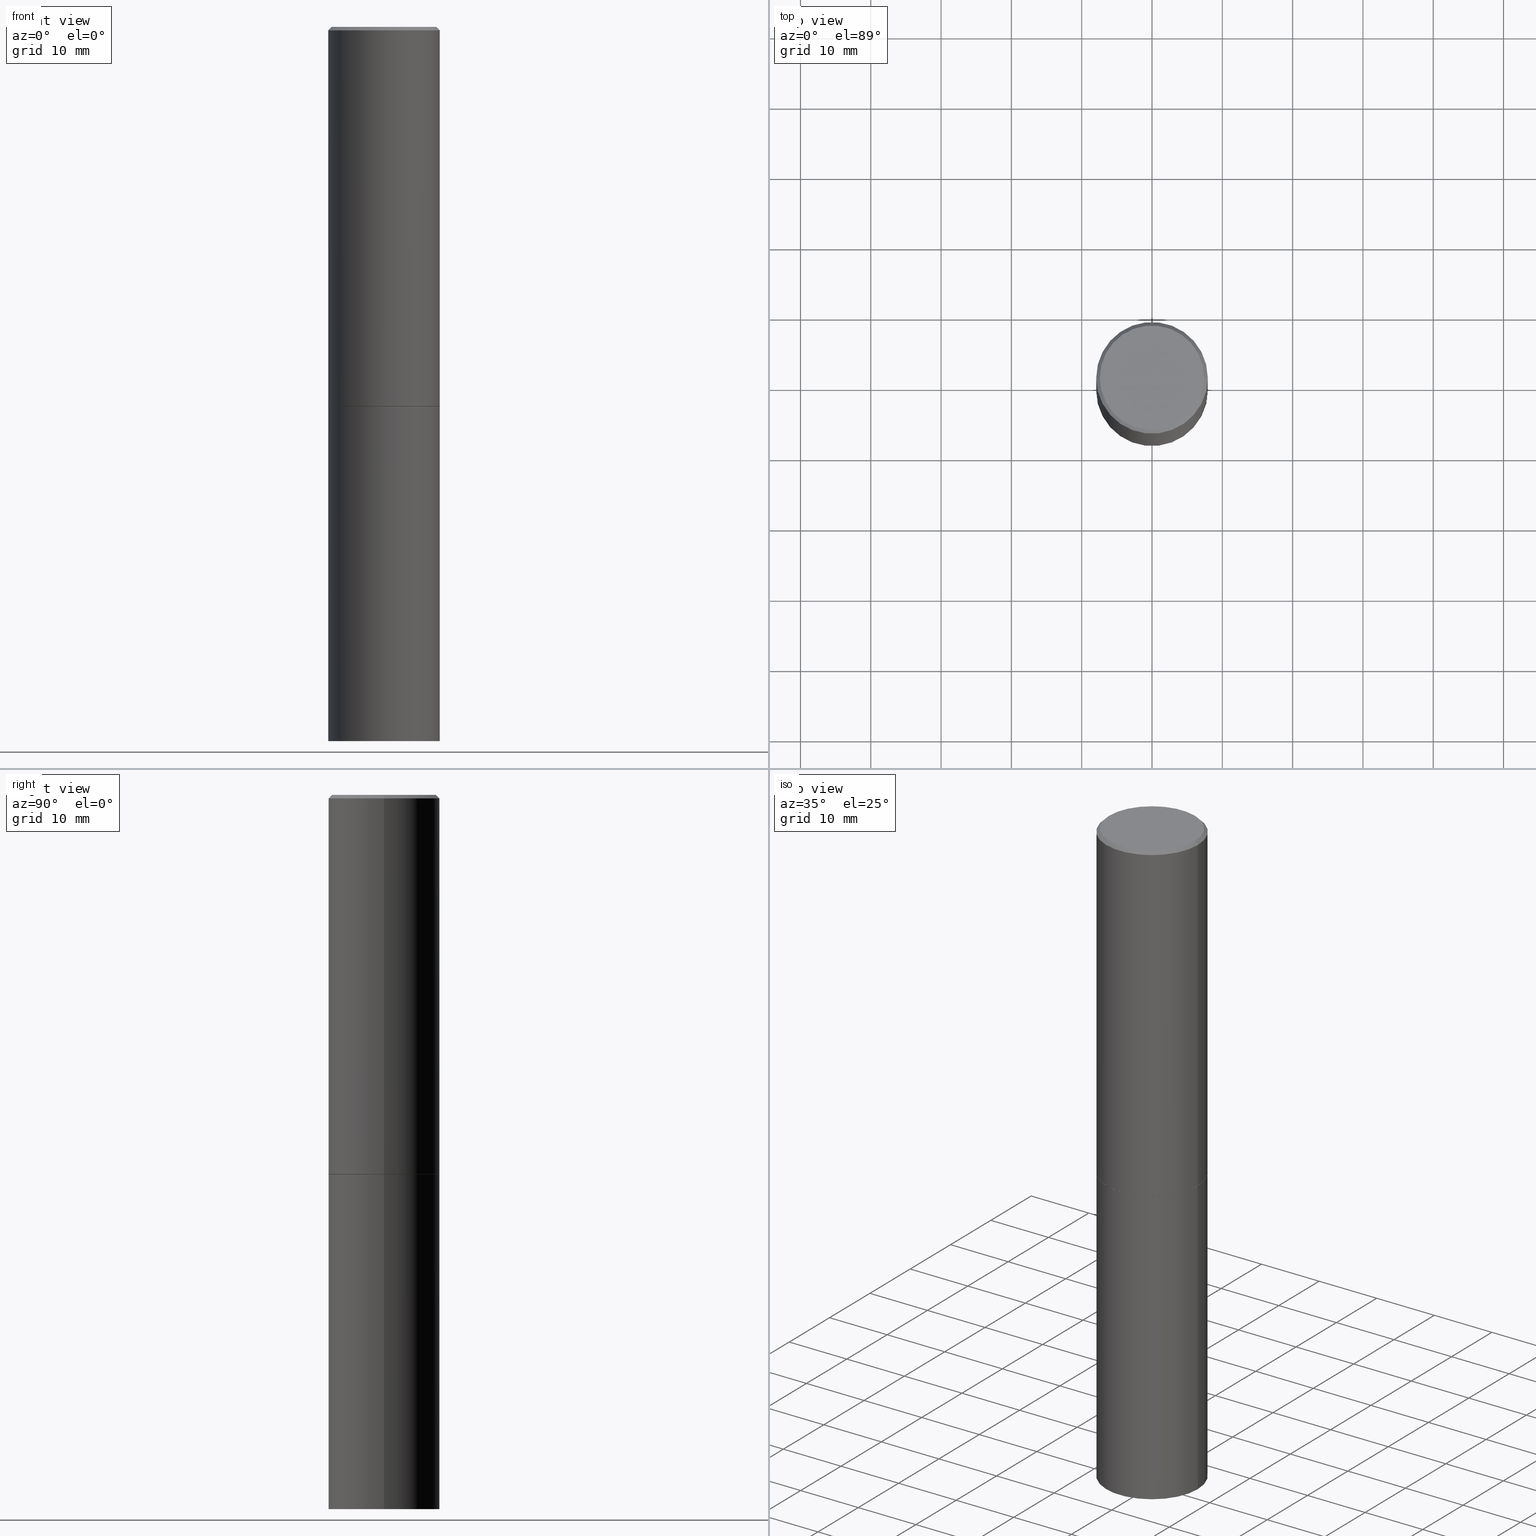
[diagram: canonical four-view strip — front | top / right | iso, engineering-drawing reading convention]
A machine part, canonical four-view strip (front | top / right | iso — engineering-drawing reading convention). The complete STEP part file that produces these views, byte-faithful:
ISO-10303-21;
HEADER;
FILE_DESCRIPTION (( 'STEP AP203' ),
    '1' );
FILE_NAME ('37569.STEP',
    '2024-02-27T22:23:01',
    ( '' ),
    ( '' ),
    'SwSTEP 2.0',
    'SolidWorks 2023',
    '' );
FILE_SCHEMA (( 'CONFIG_CONTROL_DESIGN' ));
ENDSEC;

DATA;
#1 = FACE_OUTER_BOUND ( 'NONE', #267, .T. ) ;
#2 = CC_DESIGN_PERSON_AND_ORGANIZATION_ASSIGNMENT ( #102, #314, ( #150 ) ) ;
#3 = VERTEX_POINT ( 'NONE', #190 ) ;
#4 =( GEOMETRIC_REPRESENTATION_CONTEXT ( 3 ) GLOBAL_UNCERTAINTY_ASSIGNED_CONTEXT ( ( #292 ) ) GLOBAL_UNIT_ASSIGNED_CONTEXT ( ( #294, #96, #315 ) ) REPRESENTATION_CONTEXT ( 'NONE', 'WORKASPACE' ) );
#5 = AXIS2_PLACEMENT_3D ( 'NONE', #212, #242, #270 ) ;
#6 = CARTESIAN_POINT ( 'NONE',  ( 9.781875224740546387E-29, -1.396592535537258233E-14, -4.000000000000000000 ) ) ;
#7 = DIRECTION ( 'NONE',  ( -2.445468806185136597E-29, 3.491481338843145583E-15, 1.000000000000000000 ) ) ;
#8 = EDGE_CURVE ( 'NONE', #320, #131, #229, .T. ) ;
#9 = DIRECTION ( 'NONE',  ( -2.445468806185136597E-29, 3.491481338843145583E-15, 1.000000000000000000 ) ) ;
#10 = AXIS2_PLACEMENT_3D ( 'NONE', #202, #313, #173 ) ;
#11 = APPROVAL_PERSON_ORGANIZATION ( #243, #107, #40 ) ;
#12 = PERSON_AND_ORGANIZATION ( #92, #253 ) ;
#13 = LENGTH_MEASURE_WITH_UNIT ( LENGTH_MEASURE( 0.02539999999999999897 ), #41 );
#14 = EDGE_CURVE ( 'NONE', #227, #77, #171, .T. ) ;
#15 = PLANE ( 'NONE',  #213 ) ;
#16 = CARTESIAN_POINT ( 'NONE',  ( 9.781875224740546387E-29, -1.396592535537258233E-14, -4.000000000000000000 ) ) ;
#17 = VECTOR ( 'NONE', #87, 39.37007874015748143 ) ;
#18 = APPROVAL_DATE_TIME ( #268, #65 ) ;
#19 = VERTEX_POINT ( 'NONE', #144 ) ;
#20 = CARTESIAN_POINT ( 'NONE',  ( 5.196621213143414147E-29, -7.419397845041682046E-15, -2.124999999999999556 ) ) ;
#21 = ORIENTED_EDGE ( 'NONE', *, *, #231, .T. ) ;
#22 = CARTESIAN_POINT ( 'NONE',  ( 2.182175836777010017E-15, 0.3124999999999925615, -2.125000000000000888 ) ) ;
#23 = EDGE_CURVE ( 'NONE', #3, #99, #160, .T. ) ;
#24 = CONICAL_SURFACE ( 'NONE', #36, 0.3124999999999998335, 0.7853981633974469467 ) ;
#25 = ORIENTED_EDGE ( 'NONE', *, *, #8, .F. ) ;
#26 = AXIS2_PLACEMENT_3D ( 'NONE', #20, #74, #134 ) ;
#27 = PERSON_AND_ORGANIZATION_ROLE ( 'design_owner' ) ;
#28 = ORIENTED_EDGE ( 'NONE', *, *, #145, .T. ) ;
#29 = DIRECTION ( 'NONE',  ( -2.445468806185136877E-29, 3.491481338843145188E-15, 1.000000000000000000 ) ) ;
#30 = CARTESIAN_POINT ( 'NONE',  ( 2.042516583223231356E-15, 0.2924999999999997602, -1.019124035366569212E-15 ) ) ;
#31 = LOCAL_TIME ( 17, 23, 1.000000000000000000, #360 ) ;
#32 = EDGE_LOOP ( 'NONE', ( #108, #46, #350, #178 ) ) ;
#33 = ADVANCED_FACE ( 'NONE', ( #122 ), #91, .T. ) ;
#34 = CARTESIAN_POINT ( 'NONE',  ( 0.3124999999999998335, -2.213735251080465334E-15, -0.02000000000000007674 ) ) ;
#35 = DIRECTION ( 'NONE',  ( -0.7071067811865465735, 2.468850131082246805E-15, -0.7071067811865484609 ) ) ;
#36 = AXIS2_PLACEMENT_3D ( 'NONE', #265, #101, #201 ) ;
#37 = CARTESIAN_POINT ( 'NONE',  ( 5.196621213143414147E-29, -7.419397845041682046E-15, -2.124999999999999556 ) ) ;
#38 = EDGE_CURVE ( 'NONE', #52, #106, #279, .T. ) ;
#39 = MECHANICAL_CONTEXT ( 'NONE', #257, 'mechanical' ) ;
#40 = APPROVAL_ROLE ( '' ) ;
#41 =( LENGTH_UNIT ( ) NAMED_UNIT ( * ) SI_UNIT ( $, .METRE. ) );
#42 = VERTEX_POINT ( 'NONE', #53 ) ;
#43 = CYLINDRICAL_SURFACE ( 'NONE', #334, 0.3124999999999998890 ) ;
#44 = AXIS2_PLACEMENT_3D ( 'NONE', #37, #93, #262 ) ;
#45 = SECURITY_CLASSIFICATION ( '', '', #205 ) ;
#46 = ORIENTED_EDGE ( 'NONE', *, *, #343, .T. ) ;
#47 = CARTESIAN_POINT ( 'NONE',  ( 5.196621213143414147E-29, -7.419397845041682046E-15, -2.124999999999999556 ) ) ;
#48 = EDGE_LOOP ( 'NONE', ( #298, #329, #210, #193 ) ) ;
#49 = FACE_OUTER_BOUND ( 'NONE', #206, .T. ) ;
#50 = ORIENTED_EDGE ( 'NONE', *, *, #219, .F. ) ;
#51 = AXIS2_PLACEMENT_3D ( 'NONE', #222, #277, #308 ) ;
#52 = VERTEX_POINT ( 'NONE', #195 ) ;
#53 = CARTESIAN_POINT ( 'NONE',  ( -0.3125000000000000000, -8.472215550956819896E-15, -4.000000000000000000 ) ) ;
#54 = PERSON_AND_ORGANIZATION ( #92, #253 ) ;
#55 = CARTESIAN_POINT ( 'NONE',  ( 5.194175744337229665E-29, -7.415906363702840616E-15, -2.123999999999999666 ) ) ;
#56 = DIRECTION ( 'NONE',  ( 1.000000000000000000, -6.982962677686266711E-15, 4.876067333457693400E-29 ) ) ;
#57 = AXIS2_PLACEMENT_3D ( 'NONE', #338, #304, #333 ) ;
#58 = ADVANCED_FACE ( 'NONE', ( #281 ), #114, .T. ) ;
#59 = CARTESIAN_POINT ( 'NONE',  ( 0.3125000000000000000, -1.614810119214954068E-14, -4.000000000000000000 ) ) ;
#60 = FACE_OUTER_BOUND ( 'NONE', #75, .T. ) ;
#61 = LINE ( 'NONE', #170, #98 ) ;
#62 = CARTESIAN_POINT ( 'NONE',  ( -0.2924999999999997602, 2.077431396611662611E-15, 4.268512490086005323E-18 ) ) ;
#63 = APPROVAL_PERSON_ORGANIZATION ( #54, #263, #255 ) ;
#64 = DIRECTION ( 'NONE',  ( 1.000000000000000000, -6.982962677686269077E-15, 0.000000000000000000 ) ) ;
#65 = APPROVAL ( #163, 'UNSPECIFIED' ) ;
#66 = PERSON_AND_ORGANIZATION ( #92, #253 ) ;
#67 = DIRECTION ( 'NONE',  ( -2.445468806185136597E-29, 3.491481338843145583E-15, 1.000000000000000000 ) ) ;
#68 = CARTESIAN_POINT ( 'NONE',  ( -1.043851414335219820E-46, 1.490343170380447200E-32, 4.268512490100411279E-18 ) ) ;
#69 = ORIENTED_EDGE ( 'NONE', *, *, #85, .T. ) ;
#70 = DIRECTION ( 'NONE',  ( 1.000000000000000000, 0.000000000000000000, 0.000000000000000000 ) ) ;
#71 = CARTESIAN_POINT ( 'NONE',  ( 4.890937612370292426E-31, -6.982962677686317493E-17, -0.02000000000000007674 ) ) ;
#72 = CONICAL_SURFACE ( 'NONE', #183, 0.3114999999999999991, 0.7853981633974141952 ) ;
#73 = ORIENTED_EDGE ( 'NONE', *, *, #184, .F. ) ;
#74 = DIRECTION ( 'NONE',  ( -2.445468806185136597E-29, 3.491481338843145583E-15, 1.000000000000000000 ) ) ;
#75 = EDGE_LOOP ( 'NONE', ( #357, #21, #217, #215 ) ) ;
#76 = COORDINATED_UNIVERSAL_TIME_OFFSET ( 5, 0, .BEHIND. ) ;
#77 = VERTEX_POINT ( 'NONE', #359 ) ;
#78 = PERSON_AND_ORGANIZATION ( #92, #253 ) ;
#79 = EDGE_CURVE ( 'NONE', #227, #106, #61, .T. ) ;
#80 = CIRCLE ( 'NONE', #228, 0.2924999999999997602 ) ;
#81 = CARTESIAN_POINT ( 'NONE',  ( 4.890937612370292426E-31, -6.982962677686317493E-17, -0.02000000000000007674 ) ) ;
#82 = APPROVAL_STATUS ( 'not_yet_approved' ) ;
#83 = DIRECTION ( 'NONE',  ( -2.445468806185136597E-29, 3.491481338843145583E-15, 1.000000000000000000 ) ) ;
#84 = CALENDAR_DATE ( 2024, 27, 2 ) ;
#85 = EDGE_CURVE ( 'NONE', #99, #3, #252, .T. ) ;
#86 = EDGE_LOOP ( 'NONE', ( #159, #269, #272, #244 ) ) ;
#87 = DIRECTION ( 'NONE',  ( -2.445468806185136877E-29, 3.491481338843145188E-15, 1.000000000000000000 ) ) ;
#88 = CIRCLE ( 'NONE', #105, 0.3125000000000000000 ) ;
#89 = LOCAL_TIME ( 17, 23, 1.000000000000000000, #318 ) ;
#90 = DIRECTION ( 'NONE',  ( 1.000000000000000000, -6.982962677686265922E-15, 4.876176775795935793E-29 ) ) ;
#91 = CYLINDRICAL_SURFACE ( 'NONE', #259, 0.3125000000000000000 ) ;
#92 = PERSON ( 'UNSPECIFIED', 'UNSPECIFIED', 'UNSPECIFIED', ('UNSPECIFIED'), ('UNSPECIFIED'), ('UNSPECIFIED') ) ;
#93 = DIRECTION ( 'NONE',  ( -2.445468806185136597E-29, 3.491481338843145583E-15, 1.000000000000000000 ) ) ;
#94 = AXIS2_PLACEMENT_3D ( 'NONE', #71, #142, #347 ) ;
#95 = CC_DESIGN_PERSON_AND_ORGANIZATION_ASSIGNMENT ( #141, #27, ( #218 ) ) ;
#96 =( NAMED_UNIT ( * ) PLANE_ANGLE_UNIT ( ) SI_UNIT ( $, .RADIAN. ) );
#97 = CARTESIAN_POINT ( 'NONE',  ( 0.3124999999999998335, -2.213735251080465334E-15, -0.02000000000000007674 ) ) ;
#98 = VECTOR ( 'NONE', #35, 39.37007874015748143 ) ;
#99 = VERTEX_POINT ( 'NONE', #249 ) ;
#100 = MANIFOLD_SOLID_BREP ( 'Body-Move/Copy2[2]', #211 ) ;
#101 = DIRECTION ( 'NONE',  ( 2.445468806185136597E-29, -3.491481338843145583E-15, -1.000000000000000000 ) ) ;
#102 = PERSON_AND_ORGANIZATION ( #92, #253 ) ;
#103 = ORIENTED_EDGE ( 'NONE', *, *, #14, .T. ) ;
#104 = FACE_OUTER_BOUND ( 'NONE', #186, .T. ) ;
#105 = AXIS2_PLACEMENT_3D ( 'NONE', #55, #168, #278 ) ;
#106 = VERTEX_POINT ( 'NONE', #251 ) ;
#107 = APPROVAL ( #286, 'UNSPECIFIED' ) ;
#108 = ORIENTED_EDGE ( 'NONE', *, *, #226, .F. ) ;
#109 = VERTEX_POINT ( 'NONE', #59 ) ;
#110 = CALENDAR_DATE ( 2024, 27, 2 ) ;
#111 = CARTESIAN_POINT ( 'NONE',  ( -0.3125000000000000000, 2.220446049250313081E-15, -1.537167215704658232E-29 ) ) ;
#112 = CONICAL_SURFACE ( 'NONE', #94, 0.3124999999999998335, 0.7853981633974469467 ) ;
#113 = CONICAL_SURFACE ( 'NONE', #5, 0.3114999999999999991, 0.7853981633974141952 ) ;
#114 = PLANE ( 'NONE',  #51 ) ;
#115 = PRODUCT_DEFINITION_SHAPE ( 'NONE', 'NONE',  #151 ) ;
#116 = EDGE_CURVE ( 'NONE', #131, #106, #305, .T. ) ;
#117 = MANIFOLD_SOLID_BREP ( 'Body-Move/Copy2[1]', #223 ) ;
#118 = CARTESIAN_POINT ( 'NONE',  ( -0.3124999999999998890, 2.220446049250312292E-15, -1.537167215704657391E-29 ) ) ;
#119 = PLANE ( 'NONE',  #282 ) ;
#120 = CARTESIAN_POINT ( 'NONE',  ( -1.043851414335219820E-46, 1.490343170380447200E-32, 4.268512490100411279E-18 ) ) ;
#121 = CARTESIAN_POINT ( 'NONE',  ( 5.196621213143414147E-29, -7.419397845041682046E-15, -2.124999999999999556 ) ) ;
#122 = FACE_OUTER_BOUND ( 'NONE', #86, .T. ) ;
#123 = AXIS2_PLACEMENT_3D ( 'NONE', #321, #127, #70 ) ;
#124 = DIRECTION ( 'NONE',  ( -0.7071067811865232589, 7.493145998870265808E-15, 0.7071067811865715536 ) ) ;
#125 = VECTOR ( 'NONE', #335, 39.37007874015748143 ) ;
#126 = EDGE_CURVE ( 'NONE', #52, #320, #88, .T. ) ;
#127 = DIRECTION ( 'NONE',  ( 0.000000000000000000, 0.000000000000000000, 1.000000000000000000 ) ) ;
#128 = EDGE_CURVE ( 'NONE', #106, #131, #362, .T. ) ;
#129 = LOCAL_TIME ( 17, 23, 1.000000000000000000, #76 ) ;
#130 = DIRECTION ( 'NONE',  ( 1.000000000000000000, -6.982962677686269077E-15, 0.000000000000000000 ) ) ;
#131 = VERTEX_POINT ( 'NONE', #34 ) ;
#132 = PERSON_AND_ORGANIZATION_ROLE ( 'classification_officer' ) ;
#133 = ORIENTED_EDGE ( 'NONE', *, *, #116, .F. ) ;
#134 = DIRECTION ( 'NONE',  ( 1.000000000000000000, -6.982962677686269077E-15, 0.000000000000000000 ) ) ;
#135 = ORIENTED_EDGE ( 'NONE', *, *, #23, .T. ) ;
#136 = AXIS2_PLACEMENT_3D ( 'NONE', #81, #140, #224 ) ;
#137 = CC_DESIGN_DATE_AND_TIME_ASSIGNMENT ( #332, #187, ( #151 ) ) ;
#138 = ORIENTED_EDGE ( 'NONE', *, *, #328, .F. ) ;
#139 = FACE_OUTER_BOUND ( 'NONE', #241, .T. ) ;
#140 = DIRECTION ( 'NONE',  ( -2.445468806185136597E-29, 3.491481338843145583E-15, 1.000000000000000000 ) ) ;
#141 = PERSON_AND_ORGANIZATION ( #92, #253 ) ;
#142 = DIRECTION ( 'NONE',  ( 2.445468806185136597E-29, -3.491481338843145583E-15, -1.000000000000000000 ) ) ;
#143 = LINE ( 'NONE', #276, #325 ) ;
#144 = CARTESIAN_POINT ( 'NONE',  ( 0.3114999999999999991, -9.594590719140955956E-15, -2.124999999999999556 ) ) ;
#145 = EDGE_CURVE ( 'NONE', #19, #320, #361, .T. ) ;
#146 = AXIS2_PLACEMENT_3D ( 'NONE', #307, #167, #336 ) ;
#147 = DIRECTION ( 'NONE',  ( 1.000000000000000000, -6.982962677686266711E-15, 4.876176775795935232E-29 ) ) ;
#148 = EDGE_CURVE ( 'NONE', #109, #3, #143, .T. ) ;
#149 = CYLINDRICAL_SURFACE ( 'NONE', #10, 0.3125000000000000000 ) ;
#150 = PRODUCT_DEFINITION_FORMATION_WITH_SPECIFIED_SOURCE ( 'ANY', '', #218, .NOT_KNOWN. ) ;
#151 = PRODUCT_DEFINITION ( 'UNKNOWN', '', #150, #337 ) ;
#152 = DIRECTION ( 'NONE',  ( -1.000000000000000000, 6.982962677686265922E-15, -4.876176775795935793E-29 ) ) ;
#153 = EDGE_LOOP ( 'NONE', ( #135, #69 ) ) ;
#154 = VECTOR ( 'NONE', #124, 39.37007874015748854 ) ;
#155 = FACE_OUTER_BOUND ( 'NONE', #32, .T. ) ;
#156 = ORIENTED_EDGE ( 'NONE', *, *, #164, .F. ) ;
#157 = DIRECTION ( 'NONE',  ( -1.000000000000000000, 6.982962677686265922E-15, -4.876176775795935793E-29 ) ) ;
#158 = ADVANCED_FACE ( 'NONE', ( #139 ), #192, .F. ) ;
#159 = ORIENTED_EDGE ( 'NONE', *, *, #199, .T. ) ;
#160 = CIRCLE ( 'NONE', #194, 0.3125000000000000000 ) ;
#161 = AXIS2_PLACEMENT_3D ( 'NONE', #120, #254, #56 ) ;
#162 = ORIENTED_EDGE ( 'NONE', *, *, #164, .T. ) ;
#163 = APPROVAL_STATUS ( 'not_yet_approved' ) ;
#164 = EDGE_CURVE ( 'NONE', #293, #52, #260, .T. ) ;
#165 = DIRECTION ( 'NONE',  ( 0.7071067811865232589, -2.468850131082003836E-15, 0.7071067811865715536 ) ) ;
#166 = CC_DESIGN_APPROVAL ( #263, ( #151 ) ) ;
#167 = DIRECTION ( 'NONE',  ( -2.445468806185136597E-29, 3.491481338843145583E-15, 1.000000000000000000 ) ) ;
#168 = DIRECTION ( 'NONE',  ( -2.445468806185136597E-29, 3.491481338843145583E-15, 1.000000000000000000 ) ) ;
#169 = CC_DESIGN_DATE_AND_TIME_ASSIGNMENT ( #175, #289, ( #45 ) ) ;
#170 = CARTESIAN_POINT ( 'NONE',  ( -0.3124999999999998335, 2.112346210000093866E-15, -0.02000000000000007674 ) ) ;
#171 = CIRCLE ( 'NONE', #161, 0.2924999999999997602 ) ;
#172 = ADVANCED_FACE ( 'NONE', ( #155 ), #24, .T. ) ;
#173 = DIRECTION ( 'NONE',  ( 1.000000000000000000, -6.982962677686266711E-15, 4.876176775795936353E-29 ) ) ;
#174 = AXIS2_PLACEMENT_3D ( 'NONE', #204, #238, #319 ) ;
#175 = DATE_AND_TIME ( #180, #89 ) ;
#176 = DIRECTION ( 'NONE',  ( 0.7071067811865465735, -7.319954787623252890E-15, -0.7071067811865484609 ) ) ;
#177 = DIRECTION ( 'NONE',  ( -2.445468806185136597E-29, 3.491481338843145583E-15, 1.000000000000000000 ) ) ;
#178 = ORIENTED_EDGE ( 'NONE', *, *, #79, .F. ) ;
#179 = APPLICATION_PROTOCOL_DEFINITION ( 'international standard', 'config_control_design', 1994, #257 ) ;
#180 = CALENDAR_DATE ( 2024, 27, 2 ) ;
#181 = ORIENTED_EDGE ( 'NONE', *, *, #14, .F. ) ;
#182 = DIRECTION ( 'NONE',  ( 1.000000000000000000, -6.982962677686269077E-15, 0.000000000000000000 ) ) ;
#183 = AXIS2_PLACEMENT_3D ( 'NONE', #47, #67, #182 ) ;
#184 = EDGE_CURVE ( 'NONE', #19, #293, #232, .T. ) ;
#185 = ORIENTED_EDGE ( 'NONE', *, *, #231, .F. ) ;
#186 = EDGE_LOOP ( 'NONE', ( #248, #355, #133, #25 ) ) ;
#187 = DATE_TIME_ROLE ( 'creation_date' ) ;
#188 = ORIENTED_EDGE ( 'NONE', *, *, #145, .F. ) ;
#189 = CIRCLE ( 'NONE', #236, 0.3125000000000000000 ) ;
#190 = CARTESIAN_POINT ( 'NONE',  ( 0.3125000000000000000, -9.601573681818640393E-15, -2.124999999999999556 ) ) ;
#191 = SHAPE_DEFINITION_REPRESENTATION ( #115, #324 ) ;
#192 = PLANE ( 'NONE',  #349 ) ;
#193 = ORIENTED_EDGE ( 'NONE', *, *, #128, .F. ) ;
#194 = AXIS2_PLACEMENT_3D ( 'NONE', #364, #83, #258 ) ;
#195 = CARTESIAN_POINT ( 'NONE',  ( -0.3125000000000000000, -1.522421945989535918E-15, -2.123999999999999666 ) ) ;
#196 = CC_DESIGN_PERSON_AND_ORGANIZATION_ASSIGNMENT ( #250, #358, ( #151 ) ) ;
#197 = DIRECTION ( 'NONE',  ( -2.445468806185136877E-29, 3.491481338843145188E-15, 1.000000000000000000 ) ) ;
#198 = CYLINDRICAL_SURFACE ( 'NONE', #266, 0.3124999999999998890 ) ;
#199 = EDGE_CURVE ( 'NONE', #109, #42, #200, .T. ) ;
#200 = CIRCLE ( 'NONE', #340, 0.3125000000000000000 ) ;
#201 = DIRECTION ( 'NONE',  ( -1.000000000000000000, 6.982962677686265133E-15, 0.000000000000000000 ) ) ;
#202 = CARTESIAN_POINT ( 'NONE',  ( 0.000000000000000000, 0.000000000000000000, 0.000000000000000000 ) ) ;
#203 = CARTESIAN_POINT ( 'NONE',  ( 0.3125000000000000000, -9.598082200479797386E-15, -2.123999999999999666 ) ) ;
#204 = CARTESIAN_POINT ( 'NONE',  ( 5.194175744337229665E-29, -7.415906363702840616E-15, -2.123999999999999666 ) ) ;
#205 = SECURITY_CLASSIFICATION_LEVEL ( 'unclassified' ) ;
#206 = EDGE_LOOP ( 'NONE', ( #246, #162, #50, #188 ) ) ;
#207 = DIRECTION ( 'NONE',  ( -2.445468806185136597E-29, 3.491481338843145583E-15, 1.000000000000000000 ) ) ;
#208 = ORIENTED_EDGE ( 'NONE', *, *, #126, .F. ) ;
#209 = ADVANCED_FACE ( 'NONE', ( #233 ), #198, .T. ) ;
#210 = ORIENTED_EDGE ( 'NONE', *, *, #8, .T. ) ;
#211 = CLOSED_SHELL ( 'NONE', ( #312, #345, #172, #256, #209, #309, #261, #158 ) ) ;
#212 = CARTESIAN_POINT ( 'NONE',  ( 5.196621213143414147E-29, -7.419397845041682046E-15, -2.124999999999999556 ) ) ;
#213 = AXIS2_PLACEMENT_3D ( 'NONE', #22, #237, #157 ) ;
#214 = CC_DESIGN_SECURITY_CLASSIFICATION ( #45, ( #150 ) ) ;
#215 = ORIENTED_EDGE ( 'NONE', *, *, #85, .F. ) ;
#216 = APPLICATION_PROTOCOL_DEFINITION ( 'international standard', 'config_control_design', 1994, #239 ) ;
#217 = ORIENTED_EDGE ( 'NONE', *, *, #148, .T. ) ;
#218 = PRODUCT ( '37569', '37569', '', ( #39 ) ) ;
#219 = EDGE_CURVE ( 'NONE', #320, #52, #285, .T. ) ;
#220 = APPROVAL_DATE_TIME ( #300, #263 ) ;
#221 = APPROVAL_DATE_TIME ( #354, #107 ) ;
#222 = CARTESIAN_POINT ( 'NONE',  ( 2.182175836777055771E-15, 0.3124999999999860667, -4.000000000000000888 ) ) ;
#223 = CLOSED_SHELL ( 'NONE', ( #33, #58, #302, #280 ) ) ;
#224 = DIRECTION ( 'NONE',  ( 1.000000000000000000, -6.982962677686265133E-15, 0.000000000000000000 ) ) ;
#225 = DIRECTION ( 'NONE',  ( 2.438088387897960049E-29, -3.491481338843145188E-15, -1.000000000000000000 ) ) ;
#226 = EDGE_CURVE ( 'NONE', #77, #227, #80, .T. ) ;
#227 = VERTEX_POINT ( 'NONE', #62 ) ;
#228 = AXIS2_PLACEMENT_3D ( 'NONE', #68, #177, #310 ) ;
#229 = LINE ( 'NONE', #366, #316 ) ;
#230 = CARTESIAN_POINT ( 'NONE',  ( -0.3114999999999999991, -5.206057223148969973E-15, -2.124999999999999556 ) ) ;
#231 = EDGE_CURVE ( 'NONE', #42, #109, #189, .T. ) ;
#232 = CIRCLE ( 'NONE', #44, 0.3114999999999999991 ) ;
#233 = FACE_OUTER_BOUND ( 'NONE', #48, .T. ) ;
#234 = CC_DESIGN_APPROVAL ( #107, ( #45 ) ) ;
#235 = CC_DESIGN_PERSON_AND_ORGANIZATION_ASSIGNMENT ( #12, #132, ( #45 ) ) ;
#236 = AXIS2_PLACEMENT_3D ( 'NONE', #16, #7, #130 ) ;
#237 = DIRECTION ( 'NONE',  ( 2.438088387897960049E-29, -3.491481338843145188E-15, -1.000000000000000000 ) ) ;
#238 = DIRECTION ( 'NONE',  ( -2.445468806185136597E-29, 3.491481338843145583E-15, 1.000000000000000000 ) ) ;
#239 = APPLICATION_CONTEXT ( 'configuration controlled 3d designs of mechanical parts and assemblies' ) ;
#240 = COORDINATED_UNIVERSAL_TIME_OFFSET ( 5, 0, .BEHIND. ) ;
#241 = EDGE_LOOP ( 'NONE', ( #103, #275 ) ) ;
#242 = DIRECTION ( 'NONE',  ( -2.445468806185136597E-29, 3.491481338843145583E-15, 1.000000000000000000 ) ) ;
#243 = PERSON_AND_ORGANIZATION ( #92, #253 ) ;
#244 = ORIENTED_EDGE ( 'NONE', *, *, #148, .F. ) ;
#245 = LINE ( 'NONE', #97, #363 ) ;
#246 = ORIENTED_EDGE ( 'NONE', *, *, #184, .T. ) ;
#247 = LOCAL_TIME ( 17, 23, 1.000000000000000000, #240 ) ;
#248 = ORIENTED_EDGE ( 'NONE', *, *, #219, .T. ) ;
#249 = CARTESIAN_POINT ( 'NONE',  ( -0.3125000000000000000, -8.472215550956819896E-15, -2.124999999999999556 ) ) ;
#250 = PERSON_AND_ORGANIZATION ( #92, #253 ) ;
#251 = CARTESIAN_POINT ( 'NONE',  ( -0.3124999999999998335, 2.112346210000093866E-15, -0.02000000000000007674 ) ) ;
#252 = CIRCLE ( 'NONE', #146, 0.3125000000000000000 ) ;
#253 = ORGANIZATION ( 'UNSPECIFIED', 'UNSPECIFIED', '' ) ;
#254 = DIRECTION ( 'NONE',  ( -2.445468806185136597E-29, 3.491481338843145583E-15, 1.000000000000000000 ) ) ;
#255 = APPROVAL_ROLE ( '' ) ;
#256 = ADVANCED_FACE ( 'NONE', ( #322 ), #112, .T. ) ;
#257 = APPLICATION_CONTEXT ( 'configuration controlled 3d designs of mechanical parts and assemblies' ) ;
#258 = DIRECTION ( 'NONE',  ( 1.000000000000000000, -6.982962677686265133E-15, 0.000000000000000000 ) ) ;
#259 = AXIS2_PLACEMENT_3D ( 'NONE', #339, #342, #303 ) ;
#260 = LINE ( 'NONE', #230, #154 ) ;
#261 = ADVANCED_FACE ( 'NONE', ( #1 ), #119, .F. ) ;
#262 = DIRECTION ( 'NONE',  ( 1.000000000000000000, -6.982962677686269077E-15, 0.000000000000000000 ) ) ;
#263 = APPROVAL ( #82, 'UNSPECIFIED' ) ;
#264 = PERSON_AND_ORGANIZATION_ROLE ( 'design_supplier' ) ;
#265 = CARTESIAN_POINT ( 'NONE',  ( 4.890937612370292426E-31, -6.982962677686317493E-17, -0.02000000000000007674 ) ) ;
#266 = AXIS2_PLACEMENT_3D ( 'NONE', #344, #207, #147 ) ;
#267 = EDGE_LOOP ( 'NONE', ( #73, #138 ) ) ;
#268 = DATE_AND_TIME ( #110, #31 ) ;
#269 = ORIENTED_EDGE ( 'NONE', *, *, #283, .T. ) ;
#270 = DIRECTION ( 'NONE',  ( 1.000000000000000000, -6.982962677686269077E-15, 0.000000000000000000 ) ) ;
#271 = EDGE_LOOP ( 'NONE', ( #156, #352, #28, #208 ) ) ;
#272 = ORIENTED_EDGE ( 'NONE', *, *, #23, .F. ) ;
#273 = CIRCLE ( 'NONE', #26, 0.3114999999999999991 ) ;
#274 = PRODUCT_RELATED_PRODUCT_CATEGORY ( 'detail', '', ( #218 ) ) ;
#275 = ORIENTED_EDGE ( 'NONE', *, *, #226, .T. ) ;
#276 = CARTESIAN_POINT ( 'NONE',  ( 0.3125000000000000000, -2.182175836776958347E-15, 1.523805242436230075E-29 ) ) ;
#277 = DIRECTION ( 'NONE',  ( 2.438088387897960049E-29, -3.491481338843145188E-15, -1.000000000000000000 ) ) ;
#278 = DIRECTION ( 'NONE',  ( 1.000000000000000000, -6.982962677686265133E-15, 0.000000000000000000 ) ) ;
#279 = LINE ( 'NONE', #118, #17 ) ;
#280 = ADVANCED_FACE ( 'NONE', ( #60 ), #149, .T. ) ;
#281 = FACE_OUTER_BOUND ( 'NONE', #290, .T. ) ;
#282 = AXIS2_PLACEMENT_3D ( 'NONE', #121, #341, #90 ) ;
#283 = EDGE_CURVE ( 'NONE', #42, #99, #284, .T. ) ;
#284 = LINE ( 'NONE', #111, #125 ) ;
#285 = CIRCLE ( 'NONE', #174, 0.3125000000000000000 ) ;
#286 = APPROVAL_STATUS ( 'not_yet_approved' ) ;
#287 = ORIENTED_EDGE ( 'NONE', *, *, #343, .F. ) ;
#288 = FACE_OUTER_BOUND ( 'NONE', #271, .T. ) ;
#289 = DATE_TIME_ROLE ( 'classification_date' ) ;
#290 = EDGE_LOOP ( 'NONE', ( #356, #185 ) ) ;
#291 = DIRECTION ( 'NONE',  ( 1.000000000000000000, -6.982962677686266711E-15, 4.876176775795935232E-29 ) ) ;
#292 = UNCERTAINTY_MEASURE_WITH_UNIT (LENGTH_MEASURE( 1.000000000000000082E-05 ), #294, 'distance_accuracy_value', 'NONE');
#293 = VERTEX_POINT ( 'NONE', #348 ) ;
#294 =( CONVERSION_BASED_UNIT ( 'INCH', #13 ) LENGTH_UNIT ( ) NAMED_UNIT ( #317 ) );
#295 = ORIENTED_EDGE ( 'NONE', *, *, #128, .T. ) ;
#296 = APPROVAL_ROLE ( '' ) ;
#297 = CC_DESIGN_PERSON_AND_ORGANIZATION_ASSIGNMENT ( #66, #264, ( #150 ) ) ;
#298 = ORIENTED_EDGE ( 'NONE', *, *, #38, .F. ) ;
#299 = VECTOR ( 'NONE', #165, 39.37007874015748854 ) ;
#300 = DATE_AND_TIME ( #84, #306 ) ;
#301 = CARTESIAN_POINT ( 'NONE',  ( 0.3114999999999999991, -9.594590719140955956E-15, -2.124999999999999556 ) ) ;
#302 = ADVANCED_FACE ( 'NONE', ( #323 ), #15, .F. ) ;
#303 = DIRECTION ( 'NONE',  ( 1.000000000000000000, -6.982962677686266711E-15, 4.876176775795936353E-29 ) ) ;
#304 = DIRECTION ( 'NONE',  ( -2.445468806185136597E-29, 3.491481338843145583E-15, 1.000000000000000000 ) ) ;
#305 = CIRCLE ( 'NONE', #57, 0.3124999999999998335 ) ;
#306 = LOCAL_TIME ( 17, 23, 1.000000000000000000, #330 ) ;
#307 = CARTESIAN_POINT ( 'NONE',  ( 5.196621213143414147E-29, -7.419397845041682046E-15, -2.124999999999999556 ) ) ;
#308 = DIRECTION ( 'NONE',  ( -1.000000000000000000, 6.982962677686265922E-15, -4.876176775795935793E-29 ) ) ;
#309 = ADVANCED_FACE ( 'NONE', ( #288 ), #72, .T. ) ;
#310 = DIRECTION ( 'NONE',  ( 1.000000000000000000, -6.982962677686266711E-15, 4.876067333457693400E-29 ) ) ;
#311 = CC_DESIGN_APPROVAL ( #65, ( #150 ) ) ;
#312 = ADVANCED_FACE ( 'NONE', ( #49 ), #113, .T. ) ;
#313 = DIRECTION ( 'NONE',  ( -2.445468806185136597E-29, 3.491481338843145583E-15, 1.000000000000000000 ) ) ;
#314 = PERSON_AND_ORGANIZATION_ROLE ( 'creator' ) ;
#315 =( NAMED_UNIT ( * ) SI_UNIT ( $, .STERADIAN. ) SOLID_ANGLE_UNIT ( ) );
#316 = VECTOR ( 'NONE', #197, 39.37007874015748143 ) ;
#317 = DIMENSIONAL_EXPONENTS ( 1.000000000000000000, 0.000000000000000000, 0.000000000000000000, 0.000000000000000000, 0.000000000000000000, 0.000000000000000000, 0.000000000000000000 ) ;
#318 = COORDINATED_UNIVERSAL_TIME_OFFSET ( 5, 0, .BEHIND. ) ;
#319 = DIRECTION ( 'NONE',  ( 1.000000000000000000, -6.982962677686265133E-15, 0.000000000000000000 ) ) ;
#320 = VERTEX_POINT ( 'NONE', #203 ) ;
#321 = CARTESIAN_POINT ( 'NONE',  ( 0.000000000000000000, 0.000000000000000000, 0.000000000000000000 ) ) ;
#322 = FACE_OUTER_BOUND ( 'NONE', #326, .T. ) ;
#323 = FACE_OUTER_BOUND ( 'NONE', #153, .T. ) ;
#324 = ADVANCED_BREP_SHAPE_REPRESENTATION ( '37569', ( #117, #100, #123 ), #4 ) ;
#325 = VECTOR ( 'NONE', #29, 39.37007874015748143 ) ;
#326 = EDGE_LOOP ( 'NONE', ( #287, #181, #331, #295 ) ) ;
#327 = CARTESIAN_POINT ( 'NONE',  ( 0.000000000000000000, 0.000000000000000000, 0.000000000000000000 ) ) ;
#328 = EDGE_CURVE ( 'NONE', #293, #19, #273, .T. ) ;
#329 = ORIENTED_EDGE ( 'NONE', *, *, #126, .T. ) ;
#330 = COORDINATED_UNIVERSAL_TIME_OFFSET ( 5, 0, .BEHIND. ) ;
#331 = ORIENTED_EDGE ( 'NONE', *, *, #79, .T. ) ;
#332 = DATE_AND_TIME ( #365, #129 ) ;
#333 = DIRECTION ( 'NONE',  ( 1.000000000000000000, -6.982962677686265133E-15, 0.000000000000000000 ) ) ;
#334 = AXIS2_PLACEMENT_3D ( 'NONE', #327, #353, #291 ) ;
#335 = DIRECTION ( 'NONE',  ( -2.445468806185136877E-29, 3.491481338843145188E-15, 1.000000000000000000 ) ) ;
#336 = DIRECTION ( 'NONE',  ( 1.000000000000000000, -6.982962677686265133E-15, 0.000000000000000000 ) ) ;
#337 = DESIGN_CONTEXT ( 'detailed design', #239, 'design' ) ;
#338 = CARTESIAN_POINT ( 'NONE',  ( 4.890937612370292426E-31, -6.982962677686317493E-17, -0.02000000000000007674 ) ) ;
#339 = CARTESIAN_POINT ( 'NONE',  ( 0.000000000000000000, 0.000000000000000000, 0.000000000000000000 ) ) ;
#340 = AXIS2_PLACEMENT_3D ( 'NONE', #6, #9, #64 ) ;
#341 = DIRECTION ( 'NONE',  ( -2.438088387897960049E-29, 3.491481338843145188E-15, 1.000000000000000000 ) ) ;
#342 = DIRECTION ( 'NONE',  ( -2.445468806185136597E-29, 3.491481338843145583E-15, 1.000000000000000000 ) ) ;
#343 = EDGE_CURVE ( 'NONE', #77, #131, #245, .T. ) ;
#344 = CARTESIAN_POINT ( 'NONE',  ( 0.000000000000000000, 0.000000000000000000, 0.000000000000000000 ) ) ;
#345 = ADVANCED_FACE ( 'NONE', ( #104 ), #43, .T. ) ;
#346 = APPROVAL_PERSON_ORGANIZATION ( #78, #65, #296 ) ;
#347 = DIRECTION ( 'NONE',  ( -1.000000000000000000, 6.982962677686265133E-15, 0.000000000000000000 ) ) ;
#348 = CARTESIAN_POINT ( 'NONE',  ( -0.3114999999999999991, -5.200758768800747571E-15, -2.124999999999999556 ) ) ;
#349 = AXIS2_PLACEMENT_3D ( 'NONE', #30, #225, #152 ) ;
#350 = ORIENTED_EDGE ( 'NONE', *, *, #116, .T. ) ;
#351 = CALENDAR_DATE ( 2024, 27, 2 ) ;
#352 = ORIENTED_EDGE ( 'NONE', *, *, #328, .T. ) ;
#353 = DIRECTION ( 'NONE',  ( -2.445468806185136597E-29, 3.491481338843145583E-15, 1.000000000000000000 ) ) ;
#354 = DATE_AND_TIME ( #351, #247 ) ;
#355 = ORIENTED_EDGE ( 'NONE', *, *, #38, .T. ) ;
#356 = ORIENTED_EDGE ( 'NONE', *, *, #199, .F. ) ;
#357 = ORIENTED_EDGE ( 'NONE', *, *, #283, .F. ) ;
#358 = PERSON_AND_ORGANIZATION_ROLE ( 'creator' ) ;
#359 = CARTESIAN_POINT ( 'NONE',  ( 0.2924999999999997602, -2.110215457714318353E-15, 4.268512490114932791E-18 ) ) ;
#360 = COORDINATED_UNIVERSAL_TIME_OFFSET ( 5, 0, .BEHIND. ) ;
#361 = LINE ( 'NONE', #301, #299 ) ;
#362 = CIRCLE ( 'NONE', #136, 0.3124999999999998335 ) ;
#363 = VECTOR ( 'NONE', #176, 39.37007874015748143 ) ;
#364 = CARTESIAN_POINT ( 'NONE',  ( 5.196621213143414147E-29, -7.419397845041682046E-15, -2.124999999999999556 ) ) ;
#365 = CALENDAR_DATE ( 2024, 27, 2 ) ;
#366 = CARTESIAN_POINT ( 'NONE',  ( 0.3124999999999998890, -2.182175836776957558E-15, 1.523805242436229235E-29 ) ) ;
ENDSEC;
END-ISO-10303-21;
